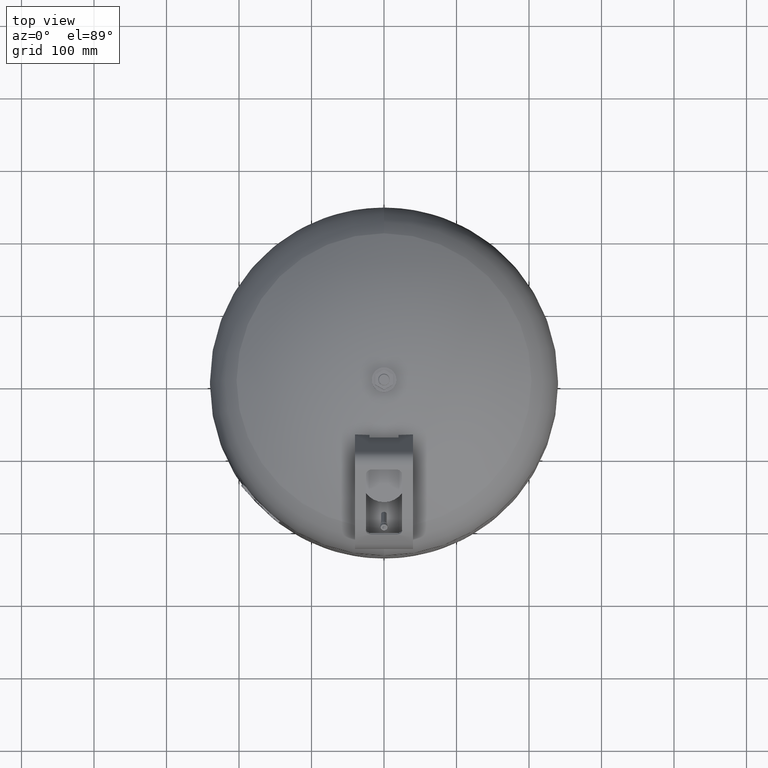
[diagram: clean part render]
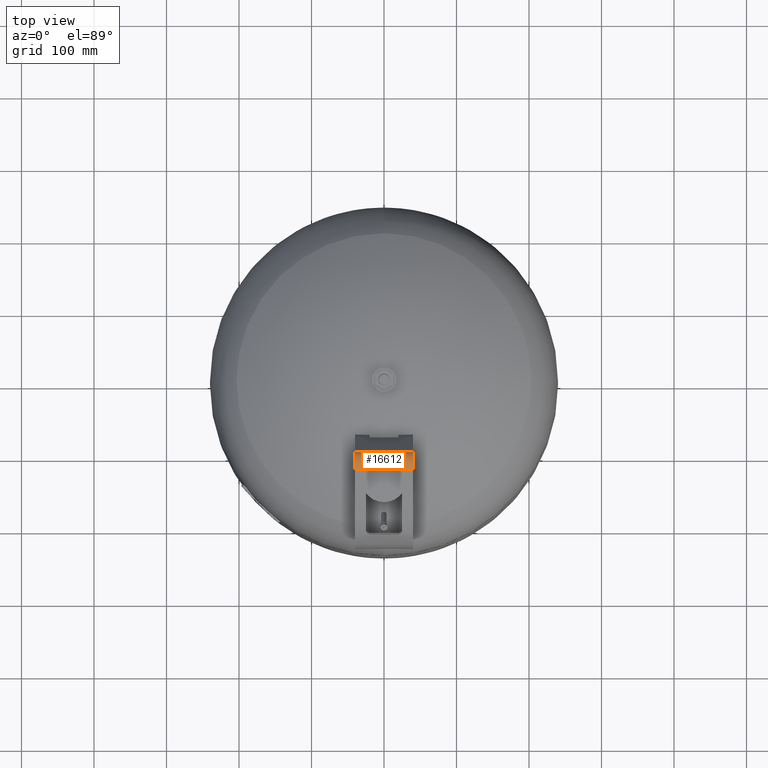
[diagram: same view with one face highlighted and labeled with its STEP entity id]
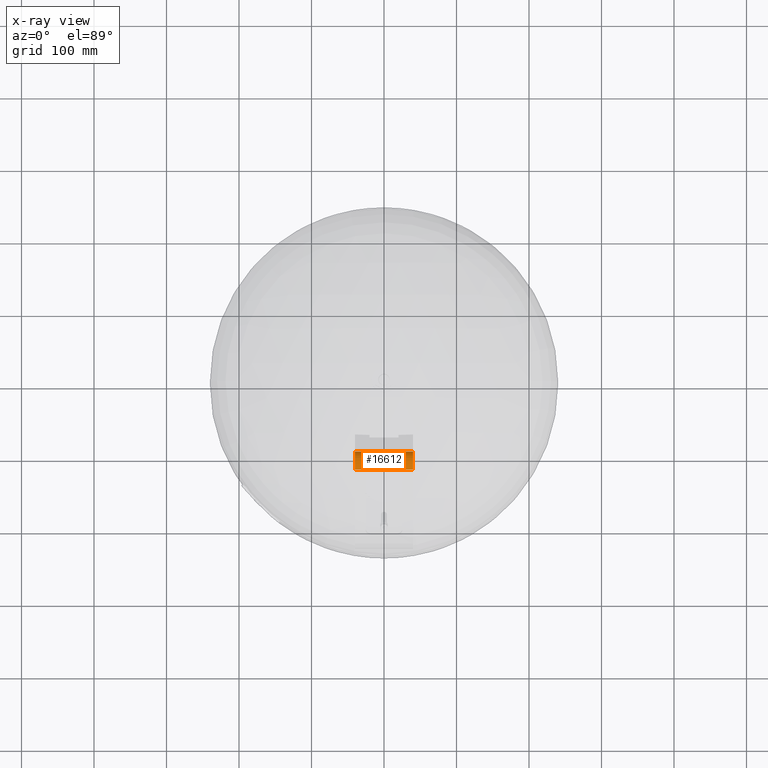
[diagram: x-ray of the same camera — body ghosted, the highlighted face saturated]
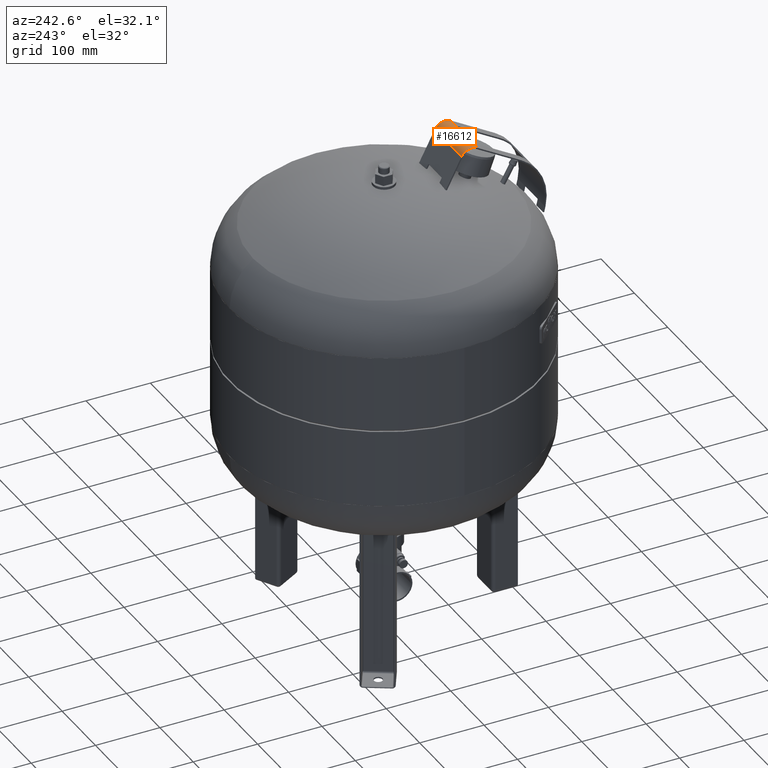
[diagram: same view with one face highlighted and labeled with its STEP entity id]
A machine part, top view. The second image highlights one B-rep face of the part: STEP entity #16612.
The next image is the same camera in x-ray: the body ghosted, the highlighted face saturated — about 0% of this face is hidden behind the body in this view.
A second angle (auxiliary view) of the same face is appended — the face is thin or edge-on in the first view.
In plain terms, the highlighted cylindrical surface (edge-blend (fillet) strip) has radius 18 mm, axis along (-1, 0, 0).
Its self-contained STEP definition (entity closure, byte-faithful):
#16189=CARTESIAN_POINT('',(-40.000000000000007,-99.622755570735777,736.495450208234620));
#16190=VERTEX_POINT('',#16189);
#16191=CARTESIAN_POINT('',(39.999999999999993,-99.622755570735734,736.495450208234620));
#16192=VERTEX_POINT('',#16191);
#16193=CARTESIAN_POINT('',(-40.000000000000007,-99.622755570735777,736.495450208234620));
#16194=DIRECTION('',(1.0,0.0,0.0));
#16195=VECTOR('',#16194,80.0);
#16196=LINE('',#16193,#16195);
#16197=EDGE_CURVE('',#16190,#16192,#16196,.T.);
#16442=CARTESIAN_POINT('',(16.999999999999986,-124.699362987195200,743.780878138438770));
#16443=VERTEX_POINT('',#16442);
#16500=CARTESIAN_POINT('',(-17.000000000000032,-124.699362987195200,743.780878138438770));
#16501=VERTEX_POINT('',#16500);
#16557=CARTESIAN_POINT('',(-17.000000000000032,-124.699362987195200,743.780878138438770));
#16558=DIRECTION('',(1.0,0.0,0.0));
#16559=VECTOR('',#16558,34.000000000000014);
#16560=LINE('',#16557,#16559);
#16561=EDGE_CURVE('',#16501,#16443,#16560,.T.);
#16573=CARTESIAN_POINT('',(-2.256611E-014,-115.617865758524810,728.239758227516860));
#16574=DIRECTION('',(-1.0,2.041297E-016,1.193991E-017));
#16575=DIRECTION('',(-9.268022E-017,-0.504527623815021,0.863395550606771));
#16576=AXIS2_PLACEMENT_3D('',#16573,#16574,#16575);
#16577=CYLINDRICAL_SURFACE('',#16576,18.0);
#16578=CARTESIAN_POINT('',(-40.000000000000021,-124.699362987195230,743.780878138438770));
#16579=VERTEX_POINT('',#16578);
#16580=CARTESIAN_POINT('',(-40.000000000000007,-115.617865758524860,728.239758227516860));
#16581=DIRECTION('',(1.000000000000000,-4.675973E-017,8.001969E-017));
#16582=DIRECTION('',(-9.268022E-017,-0.504527623815021,0.863395550606771));
#16583=AXIS2_PLACEMENT_3D('',#16580,#16581,#16582);
#16584=CIRCLE('',#16583,18.0);
#16585=EDGE_CURVE('',#16190,#16579,#16584,.T.);
#16586=ORIENTED_EDGE('',*,*,#16585,.T.);
#16587=CARTESIAN_POINT('',(-17.000000000000032,-124.699362987195200,743.780878138438770));
#16588=DIRECTION('',(-1.0,0.0,0.0));
#16589=VECTOR('',#16588,22.999999999999989);
#16590=LINE('',#16587,#16589);
#16591=EDGE_CURVE('',#16501,#16579,#16590,.T.);
#16592=ORIENTED_EDGE('',*,*,#16591,.F.);
#16593=ORIENTED_EDGE('',*,*,#16561,.T.);
#16594=CARTESIAN_POINT('',(39.999999999999979,-124.699362987195160,743.780878138438770));
#16595=VERTEX_POINT('',#16594);
#16596=CARTESIAN_POINT('',(39.999999999999979,-124.699362987195160,743.780878138438770));
#16597=DIRECTION('',(-1.0,0.0,0.0));
#16598=VECTOR('',#16597,22.999999999999993);
#16599=LINE('',#16596,#16598);
#16600=EDGE_CURVE('',#16595,#16443,#16599,.T.);
#16601=ORIENTED_EDGE('',*,*,#16600,.F.);
#16602=CARTESIAN_POINT('',(39.999999999999993,-115.617865758524800,728.239758227516970));
#16603=DIRECTION('',(-1.000000000000000,4.675973E-017,-8.001969E-017));
#16604=DIRECTION('',(-9.268022E-017,-0.504527623815021,0.863395550606771));
#16605=AXIS2_PLACEMENT_3D('',#16602,#16603,#16604);
#16606=CIRCLE('',#16605,18.0);
#16607=EDGE_CURVE('',#16595,#16192,#16606,.T.);
#16608=ORIENTED_EDGE('',*,*,#16607,.T.);
#16609=ORIENTED_EDGE('',*,*,#16197,.F.);
#16610=EDGE_LOOP('',(#16586,#16592,#16593,#16601,#16608,#16609));
#16611=FACE_OUTER_BOUND('',#16610,.T.);
#16612=ADVANCED_FACE('',(#16611),#16577,.T.);